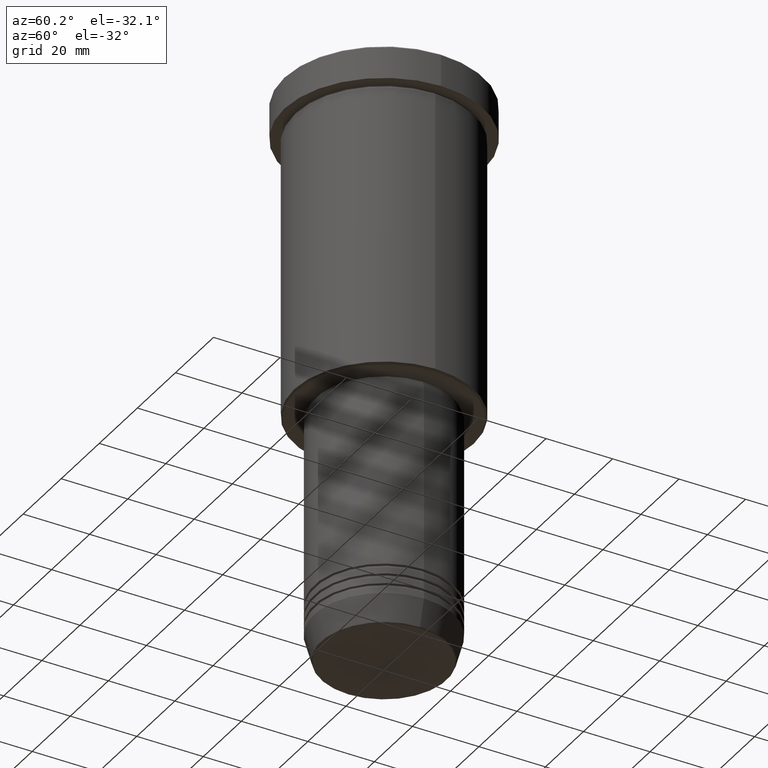
[diagram: clean part render]
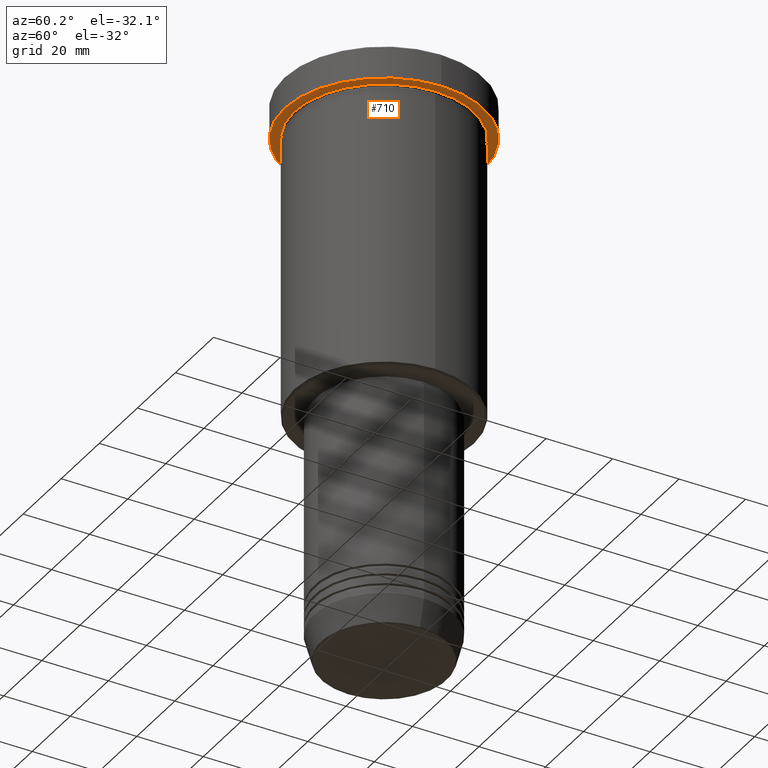
[diagram: same view with one face highlighted and labeled with its STEP entity id]
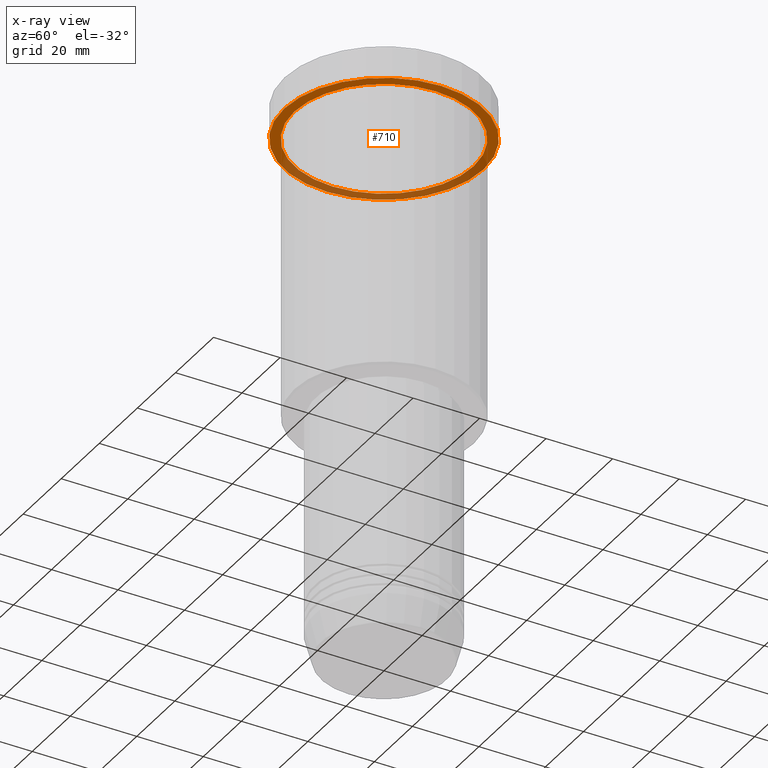
[diagram: x-ray of the same camera — body ghosted, the highlighted face saturated]
A machine part, auxiliary view. The second image highlights one B-rep face of the part: STEP entity #710.
The next image is the same camera in x-ray: the body ghosted, the highlighted face saturated — about 38% of this face is hidden behind the body in this view.
In plain terms, the highlighted planar face has unit normal (0, 0, -1).
Its self-contained STEP definition (entity closure, byte-faithful):
#3 = PLANE ( 'NONE',  #551 ) ;
#52 = CIRCLE ( 'NONE', #326, 30.00000000000000000 ) ;
#92 = AXIS2_PLACEMENT_3D ( 'NONE', #790, #220, #679 ) ;
#102 = CARTESIAN_POINT ( 'NONE',  ( -30.00000000000000000, 3.673940397442059178E-15, -9.999999999999992895 ) ) ;
#123 = VERTEX_POINT ( 'NONE', #375 ) ;
#202 = CARTESIAN_POINT ( 'NONE',  ( 30.00000000000000000, 0.000000000000000000, -9.999999999999992895 ) ) ;
#221 = ORIENTED_EDGE ( 'NONE', *, *, #1005, .T. ) ;
#220 = DIRECTION ( 'NONE',  ( -0.000000000000000000, -0.000000000000000000, 1.000000000000000000 ) ) ;
#242 = EDGE_LOOP ( 'NONE', ( #427, #756 ) ) ;
#243 = VERTEX_POINT ( 'NONE', #102 ) ;
#258 = EDGE_CURVE ( 'NONE', #243, #282, #52, .T. ) ;
#262 = EDGE_LOOP ( 'NONE', ( #1145, #221 ) ) ;
#282 = VERTEX_POINT ( 'NONE', #202 ) ;
#292 = DIRECTION ( 'NONE',  ( 1.000000000000000000, 0.000000000000000000, 0.000000000000000000 ) ) ;
#301 = DIRECTION ( 'NONE',  ( 0.000000000000000000, 0.000000000000000000, -1.000000000000000000 ) ) ;
#313 = CARTESIAN_POINT ( 'NONE',  ( 0.000000000000000000, 0.000000000000000000, -9.999999999999992895 ) ) ;
#326 = AXIS2_PLACEMENT_3D ( 'NONE', #396, #1101, #292 ) ;
#352 = VERTEX_POINT ( 'NONE', #967 ) ;
#355 = DIRECTION ( 'NONE',  ( -1.000000000000000000, 0.000000000000000000, 0.000000000000000000 ) ) ;
#374 = CIRCLE ( 'NONE', #574, 27.00000000000000355 ) ;
#375 = CARTESIAN_POINT ( 'NONE',  ( 27.00000000000000355, 3.306546357697854128E-15, -9.999999999999992895 ) ) ;
#396 = CARTESIAN_POINT ( 'NONE',  ( 0.000000000000000000, 0.000000000000000000, -9.999999999999992895 ) ) ;
#403 = EDGE_CURVE ( 'NONE', #282, #243, #418, .T. ) ;
#418 = CIRCLE ( 'NONE', #857, 30.00000000000000000 ) ;
#427 = ORIENTED_EDGE ( 'NONE', *, *, #403, .F. ) ;
#456 = FACE_OUTER_BOUND ( 'NONE', #242, .T. ) ;
#520 = DIRECTION ( 'NONE',  ( -0.000000000000000000, -0.000000000000000000, 1.000000000000000000 ) ) ;
#551 = AXIS2_PLACEMENT_3D ( 'NONE', #833, #301, #657 ) ;
#574 = AXIS2_PLACEMENT_3D ( 'NONE', #992, #520, #355 ) ;
#642 = FACE_BOUND ( 'NONE', #262, .T. ) ;
#657 = DIRECTION ( 'NONE',  ( -1.000000000000000000, 0.000000000000000000, -0.000000000000000000 ) ) ;
#674 = DIRECTION ( 'NONE',  ( 1.000000000000000000, 0.000000000000000000, 0.000000000000000000 ) ) ;
#679 = DIRECTION ( 'NONE',  ( -1.000000000000000000, 0.000000000000000000, 0.000000000000000000 ) ) ;
#710 = ADVANCED_FACE ( 'NONE', ( #642, #456 ), #3, .T. ) ;
#756 = ORIENTED_EDGE ( 'NONE', *, *, #258, .F. ) ;
#790 = CARTESIAN_POINT ( 'NONE',  ( 0.000000000000000000, 0.000000000000000000, -9.999999999999992895 ) ) ;
#823 = EDGE_CURVE ( 'NONE', #352, #123, #1107, .T. ) ;
#833 = CARTESIAN_POINT ( 'NONE',  ( 0.000000000000000000, 30.00000000000000000, -9.999999999999992895 ) ) ;
#857 = AXIS2_PLACEMENT_3D ( 'NONE', #313, #862, #674 ) ;
#862 = DIRECTION ( 'NONE',  ( -0.000000000000000000, -0.000000000000000000, 1.000000000000000000 ) ) ;
#967 = CARTESIAN_POINT ( 'NONE',  ( -27.00000000000000355, 0.000000000000000000, -9.999999999999992895 ) ) ;
#992 = CARTESIAN_POINT ( 'NONE',  ( 0.000000000000000000, 0.000000000000000000, -9.999999999999992895 ) ) ;
#1005 = EDGE_CURVE ( 'NONE', #123, #352, #374, .T. ) ;
#1101 = DIRECTION ( 'NONE',  ( -0.000000000000000000, -0.000000000000000000, 1.000000000000000000 ) ) ;
#1107 = CIRCLE ( 'NONE', #92, 27.00000000000000355 ) ;
#1145 = ORIENTED_EDGE ( 'NONE', *, *, #823, .T. ) ;